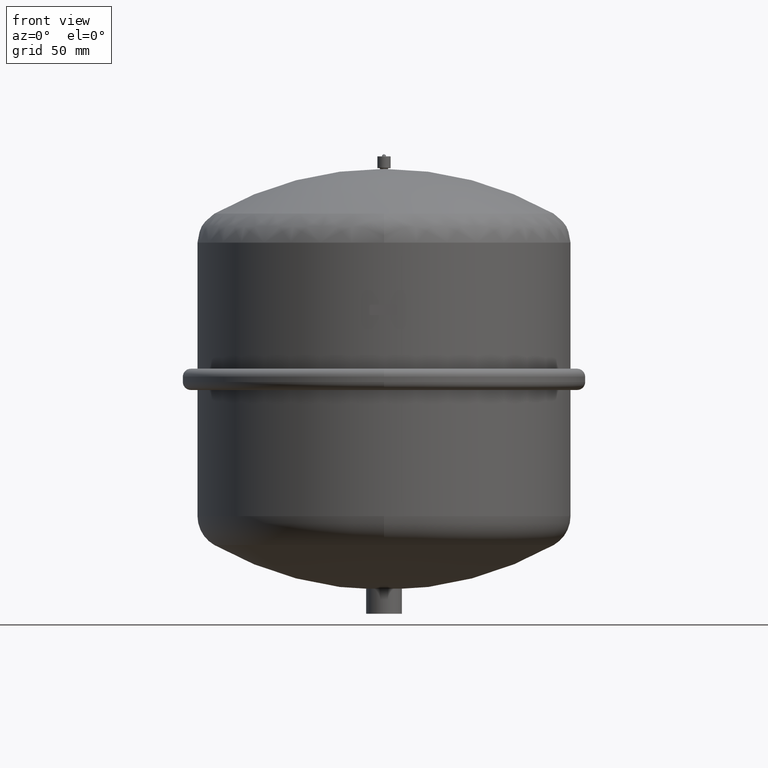
[diagram: clean part render]
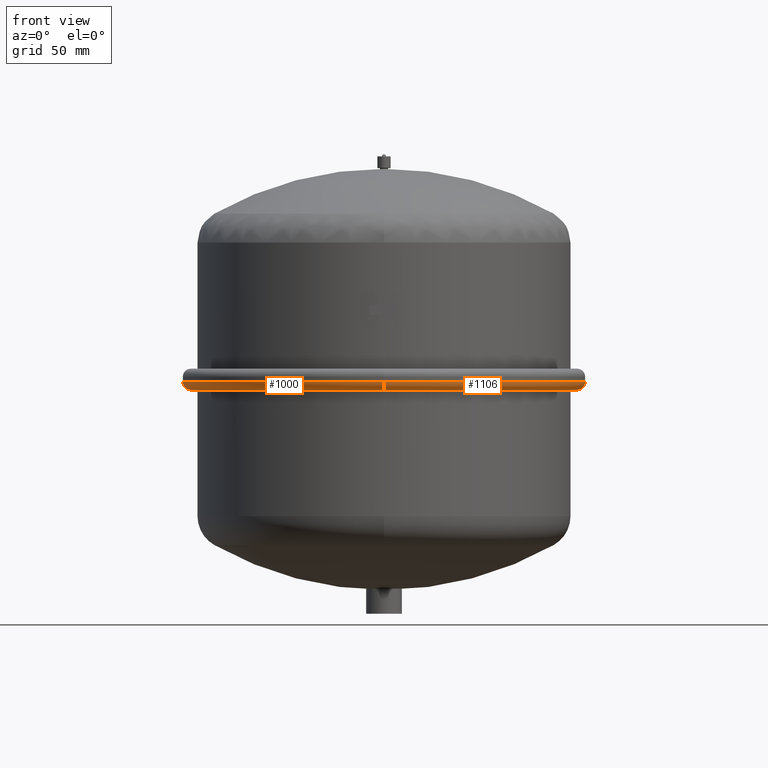
[diagram: same view with one multi-face feature highlighted, each face labeled with its STEP entity id]
A machine part, front view. The highlighted faces form ONE feature: a constant-radius fillet chain: 2 tangent blend faces with common blend radius 6 mm. The faces share edges in the B-rep.
Their STEP definitions:
[1] entity #1000 (Torus):
#904=CARTESIAN_POINT('',(-151.0,4.440892E-016,174.0));
#905=VERTEX_POINT('',#904);
#930=CARTESIAN_POINT('',(-1.849156E-014,151.0,174.0));
#931=VERTEX_POINT('',#930);
#939=CARTESIAN_POINT('',(-9.244464E-032,4.440892E-016,174.0));
#940=DIRECTION('',(0.0,0.0,1.0));
#941=DIRECTION('',(-1.0,0.0,0.0));
#942=AXIS2_PLACEMENT_3D('',#939,#940,#941);
#943=CIRCLE('',#942,151.0);
#944=EDGE_CURVE('',#931,#905,#943,.T.);
#949=CARTESIAN_POINT('',(-2.465190E-031,4.440892E-016,174.0));
#950=DIRECTION('',(-1.540744E-032,6.123032E-017,1.0));
#951=DIRECTION('',(0.0,-1.0,0.0));
#952=AXIS2_PLACEMENT_3D('',#949,#950,#951);
#953=TOROIDAL_SURFACE('',#952,145.0,6.000000000000001);
#954=CARTESIAN_POINT('',(-2.465190E-031,-151.0,174.0));
#955=VERTEX_POINT('',#954);
#956=CARTESIAN_POINT('',(-1.540744E-031,-145.00000000000003,168.0));
#957=VERTEX_POINT('',#956);
#958=CARTESIAN_POINT('',(-2.465190E-031,-145.0,174.0));
#959=DIRECTION('',(1.0,0.0,0.0));
#960=DIRECTION('',(0.0,-1.0,0.0));
#961=AXIS2_PLACEMENT_3D('',#958,#959,#960);
#962=CIRCLE('',#961,6.000000000000001);
#963=EDGE_CURVE('',#955,#957,#962,.T.);
#964=ORIENTED_EDGE('',*,*,#963,.F.);
#965=CARTESIAN_POINT('',(-9.244464E-032,4.440892E-016,174.0));
#966=DIRECTION('',(0.0,0.0,1.0));
#967=DIRECTION('',(-1.0,0.0,0.0));
#968=AXIS2_PLACEMENT_3D('',#965,#966,#967);
#969=CIRCLE('',#968,151.0);
#970=EDGE_CURVE('',#905,#955,#969,.T.);
#971=ORIENTED_EDGE('',*,*,#970,.F.);
#972=ORIENTED_EDGE('',*,*,#944,.F.);
#973=CARTESIAN_POINT('',(-1.775679E-014,145.00000000000003,168.0));
#974=VERTEX_POINT('',#973);
#975=CARTESIAN_POINT('',(-1.775679E-014,145.0,174.0));
#976=DIRECTION('',(-1.0,0.0,0.0));
#977=DIRECTION('',(0.0,1.0,0.0));
#978=AXIS2_PLACEMENT_3D('',#975,#976,#977);
#979=CIRCLE('',#978,6.000000000000001);
#980=EDGE_CURVE('',#931,#974,#979,.T.);
#981=ORIENTED_EDGE('',*,*,#980,.T.);
#982=CARTESIAN_POINT('',(-145.00000000000003,0.0,168.0));
#983=VERTEX_POINT('',#982);
#984=CARTESIAN_POINT('',(0.0,0.0,168.0));
#985=DIRECTION('',(0.0,0.0,1.0));
#986=DIRECTION('',(-1.0,0.0,0.0));
#987=AXIS2_PLACEMENT_3D('',#984,#985,#986);
#988=CIRCLE('',#987,145.00000000000003);
#989=EDGE_CURVE('',#974,#983,#988,.T.);
#990=ORIENTED_EDGE('',*,*,#989,.T.);
#991=CARTESIAN_POINT('',(0.0,0.0,168.0));
#992=DIRECTION('',(0.0,0.0,1.0));
#993=DIRECTION('',(-1.0,0.0,0.0));
#994=AXIS2_PLACEMENT_3D('',#991,#992,#993);
#995=CIRCLE('',#994,145.00000000000003);
#996=EDGE_CURVE('',#983,#957,#995,.T.);
#997=ORIENTED_EDGE('',*,*,#996,.T.);
#998=EDGE_LOOP('',(#964,#971,#972,#981,#990,#997));
#999=FACE_OUTER_BOUND('',#998,.T.);
#1000=ADVANCED_FACE('',(#999),#953,.T.);
[2] entity #1106 (Torus):
#922=CARTESIAN_POINT('',(151.0,1.881318E-014,174.0));
#923=VERTEX_POINT('',#922);
#930=CARTESIAN_POINT('',(-1.849156E-014,151.0,174.0));
#931=VERTEX_POINT('',#930);
#932=CARTESIAN_POINT('',(-9.244464E-032,4.440892E-016,174.0));
#933=DIRECTION('',(0.0,0.0,1.0));
#934=DIRECTION('',(-1.0,0.0,0.0));
#935=AXIS2_PLACEMENT_3D('',#932,#933,#934);
#936=CIRCLE('',#935,151.0);
#937=EDGE_CURVE('',#923,#931,#936,.T.);
#954=CARTESIAN_POINT('',(-2.465190E-031,-151.0,174.0));
#955=VERTEX_POINT('',#954);
#956=CARTESIAN_POINT('',(-1.540744E-031,-145.00000000000003,168.0));
#957=VERTEX_POINT('',#956);
#958=CARTESIAN_POINT('',(-2.465190E-031,-145.0,174.0));
#959=DIRECTION('',(1.0,0.0,0.0));
#960=DIRECTION('',(0.0,-1.0,0.0));
#961=AXIS2_PLACEMENT_3D('',#958,#959,#960);
#962=CIRCLE('',#961,6.000000000000001);
#963=EDGE_CURVE('',#955,#957,#962,.T.);
#973=CARTESIAN_POINT('',(-1.775679E-014,145.00000000000003,168.0));
#974=VERTEX_POINT('',#973);
#975=CARTESIAN_POINT('',(-1.775679E-014,145.0,174.0));
#976=DIRECTION('',(-1.0,0.0,0.0));
#977=DIRECTION('',(0.0,1.0,0.0));
#978=AXIS2_PLACEMENT_3D('',#975,#976,#977);
#979=CIRCLE('',#978,6.000000000000001);
#980=EDGE_CURVE('',#931,#974,#979,.T.);
#1074=CARTESIAN_POINT('',(0.0,0.0,168.0));
#1075=DIRECTION('',(0.0,0.0,1.0));
#1076=DIRECTION('',(-1.0,0.0,0.0));
#1077=AXIS2_PLACEMENT_3D('',#1074,#1075,#1076);
#1078=CIRCLE('',#1077,145.00000000000003);
#1079=EDGE_CURVE('',#957,#974,#1078,.T.);
#1088=CARTESIAN_POINT('',(-2.465190E-031,4.440892E-016,174.0));
#1089=DIRECTION('',(-1.540744E-032,6.123032E-017,1.0));
#1090=DIRECTION('',(0.0,-1.0,0.0));
#1091=AXIS2_PLACEMENT_3D('',#1088,#1089,#1090);
#1092=TOROIDAL_SURFACE('',#1091,145.0,6.000000000000001);
#1093=ORIENTED_EDGE('',*,*,#963,.T.);
#1094=ORIENTED_EDGE('',*,*,#1079,.T.);
#1095=ORIENTED_EDGE('',*,*,#980,.F.);
#1096=ORIENTED_EDGE('',*,*,#937,.F.);
#1097=CARTESIAN_POINT('',(-9.244464E-032,4.440892E-016,174.0));
#1098=DIRECTION('',(0.0,0.0,1.0));
#1099=DIRECTION('',(-1.0,0.0,0.0));
#1100=AXIS2_PLACEMENT_3D('',#1097,#1098,#1099);
#1101=CIRCLE('',#1100,151.0);
#1102=EDGE_CURVE('',#955,#923,#1101,.T.);
#1103=ORIENTED_EDGE('',*,*,#1102,.F.);
#1104=EDGE_LOOP('',(#1093,#1094,#1095,#1096,#1103));
#1105=FACE_OUTER_BOUND('',#1104,.T.);
#1106=ADVANCED_FACE('',(#1105),#1092,.T.);